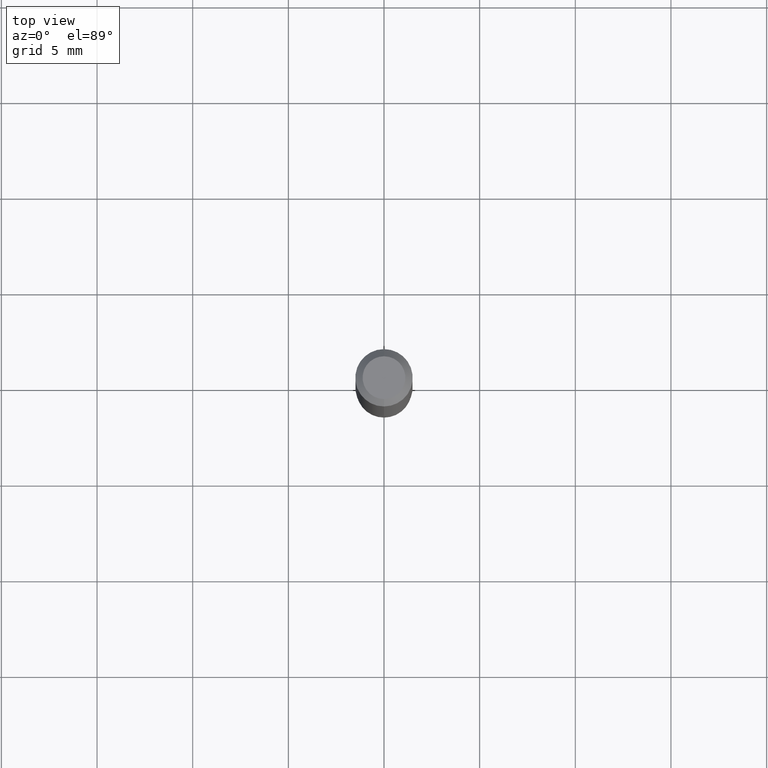
[diagram: clean part render]
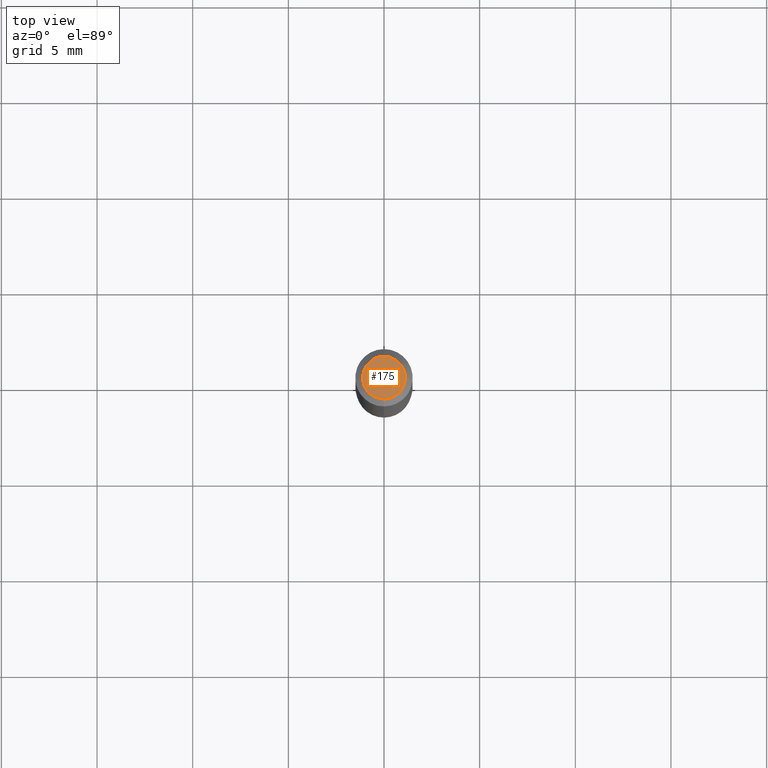
[diagram: same view with one face highlighted and labeled with its STEP entity id]
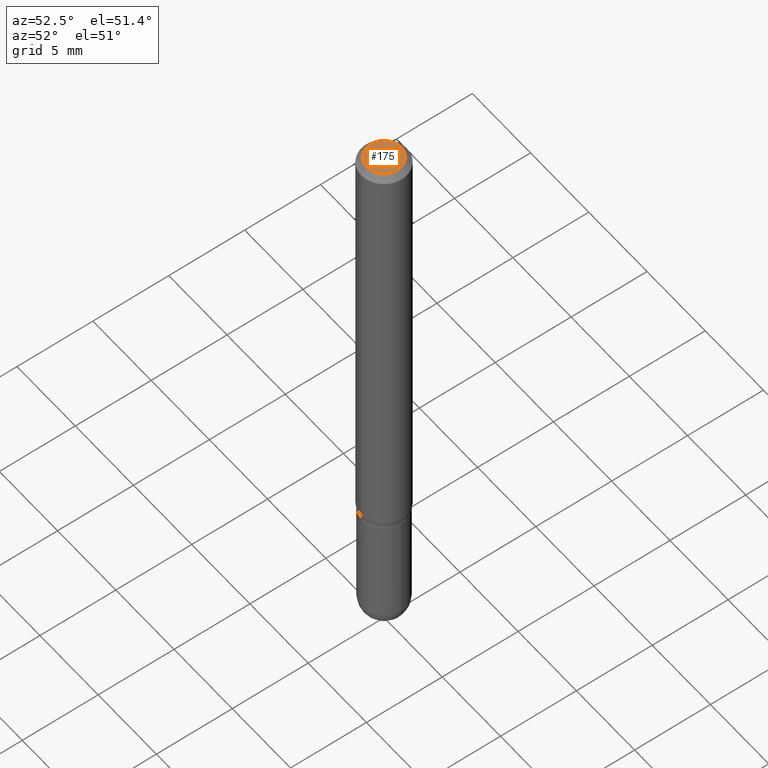
[diagram: same view with one face highlighted and labeled with its STEP entity id]
A machine part, top view. The second image highlights one B-rep face of the part: STEP entity #175.
A second angle (auxiliary view) of the same face is appended — the face is thin or edge-on in the first view.
In plain terms, the highlighted planar face has unit normal (0, -0, -1).
Its self-contained STEP definition (entity closure, byte-faithful):
#39 = CIRCLE ( 'NONE', #408, 0.04404999999999999888 ) ;
#40 = CIRCLE ( 'NONE', #133, 0.04404999999999999888 ) ;
#46 = CARTESIAN_POINT ( 'NONE',  ( 2.241747065286492657E-45, -3.200500596455453038E-31, -9.166770263705467281E-17 ) ) ;
#86 = EDGE_CURVE ( 'NONE', #93, #194, #40, .T. ) ;
#93 = VERTEX_POINT ( 'NONE', #472 ) ;
#105 = DIRECTION ( 'NONE',  ( -2.445514615068268608E-29, 3.491415737915220705E-15, 1.000000000000000000 ) ) ;
#133 = AXIS2_PLACEMENT_3D ( 'NONE', #46, #510, #153 ) ;
#153 = DIRECTION ( 'NONE',  ( -6.982962677686265133E-15, -1.000000000000000000, 3.491415737915221099E-15 ) ) ;
#175 = ADVANCED_FACE ( 'NONE', ( #250 ), #311, .F. ) ;
#194 = VERTEX_POINT ( 'NONE', #459 ) ;
#204 = EDGE_LOOP ( 'NONE', ( #323, #213 ) ) ;
#213 = ORIENTED_EDGE ( 'NONE', *, *, #86, .T. ) ;
#232 = DIRECTION ( 'NONE',  ( -6.982962677686265133E-15, -1.000000000000000000, 3.491415737915221099E-15 ) ) ;
#250 = FACE_OUTER_BOUND ( 'NONE', #204, .T. ) ;
#273 = DIRECTION ( 'NONE',  ( 2.445514615068268047E-29, -3.491415737915221099E-15, -1.000000000000000000 ) ) ;
#311 = PLANE ( 'NONE',  #383 ) ;
#323 = ORIENTED_EDGE ( 'NONE', *, *, #378, .T. ) ;
#344 = CARTESIAN_POINT ( 'NONE',  ( 3.075995059520799729E-16, 0.04404999999999999888, -1.996307145736928084E-16 ) ) ;
#353 = DIRECTION ( 'NONE',  ( 6.982962677686265922E-15, 1.000000000000000000, -3.491415737915221099E-15 ) ) ;
#378 = EDGE_CURVE ( 'NONE', #194, #93, #39, .T. ) ;
#383 = AXIS2_PLACEMENT_3D ( 'NONE', #344, #273, #353 ) ;
#408 = AXIS2_PLACEMENT_3D ( 'NONE', #423, #105, #232 ) ;
#423 = CARTESIAN_POINT ( 'NONE',  ( 2.241747065286492657E-45, -3.200500596455453038E-31, -9.166770263705467281E-17 ) ) ;
#459 = CARTESIAN_POINT ( 'NONE',  ( 3.599717260347271507E-16, 0.04404999999999999888, -2.454645658922201879E-16 ) ) ;
#472 = CARTESIAN_POINT ( 'NONE',  ( -3.536586717851222218E-16, -0.04404999999999999888, 6.212916061811080532E-17 ) ) ;
#510 = DIRECTION ( 'NONE',  ( -2.445514615068268608E-29, 3.491415737915220705E-15, 1.000000000000000000 ) ) ;